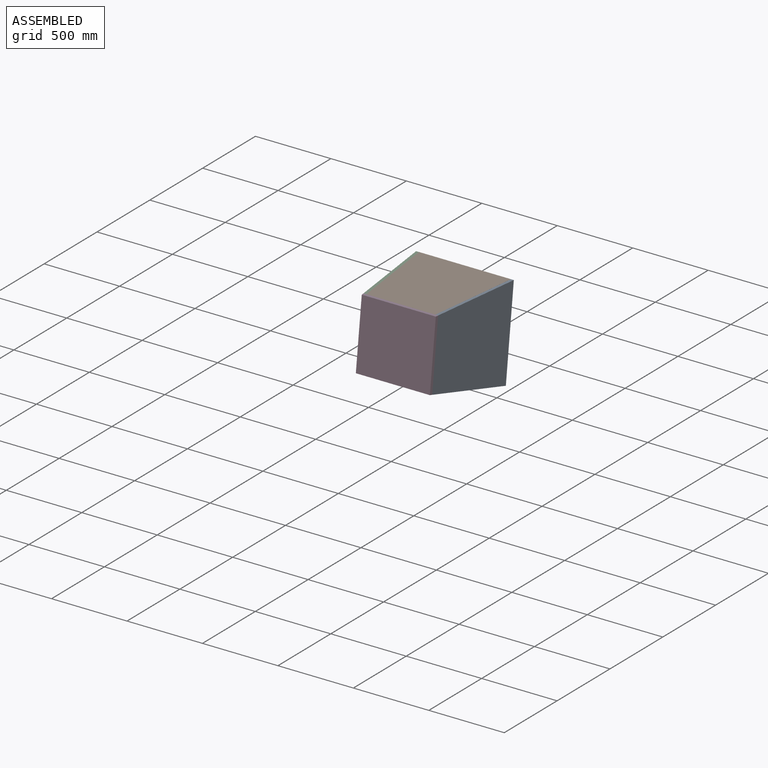
[diagram: assembled view]
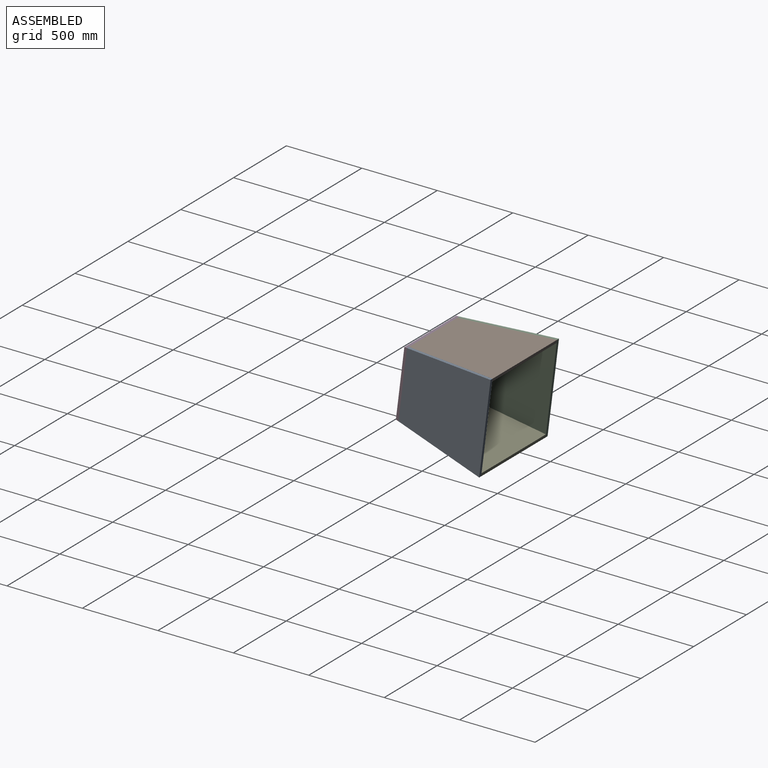
[diagram: assembled view, second angle]
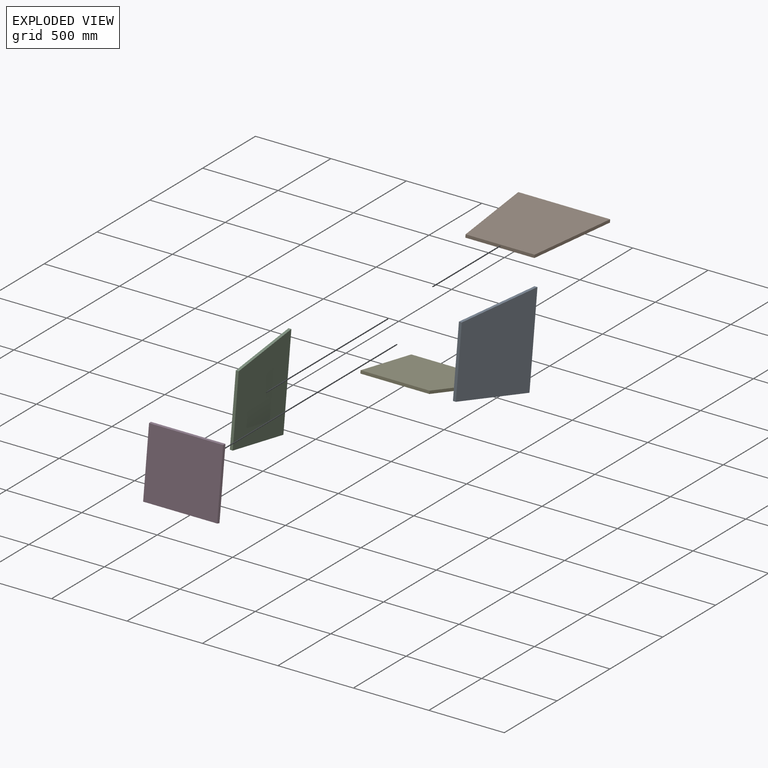
[diagram: exploded view]
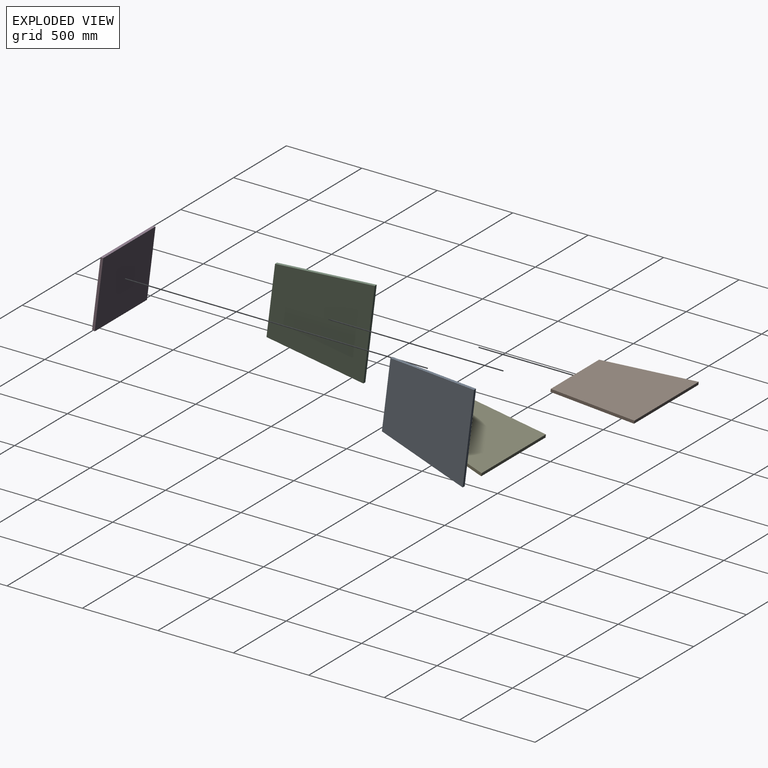
[diagram: exploded view, second angle]
ASSEMBLY  parts=5 mates=4
PART A: 6 faces, bbox 609x609.6x19.1 mm
  f0: plane 609.6x75.93mm, normal (-0.99,0.12,-0.02), area 11658.8mm2, adj f1,f3,f4,f5
  f1: plane 609x19.05mm, normal (0,-0.99,0.13), area 11693mm2, adj f0,f2,f4,f5
  f2: plane 609.6x75.93mm, normal (0.99,0.12,-0.02), area 11658.8mm2, adj f1,f3,f4,f5
  f3: plane 457.2x19.05mm, normal (0,0.99,-0.13), area 8778.2mm2, adj f0,f2,f4,f5
  f4: plane 609x607.19mm, normal (0,0,1), area 323694.3mm2, adj f0,f1,f2,f3
  f5: plane 608.93x607.19mm, normal (0,0,-1), area 323652.7mm2, adj f0,f1,f2,f3
PART B: same geometry as A
PART C: same geometry as A
PART D: 6 faces, bbox 495.3x457.2x19.1 mm
  f0: plane 495.3x19.05mm, normal (0,0.99,-0.12), area 9461.4mm2, adj f1,f3,f4,f5
  f1: plane 457.2x19.05mm, normal (-0.99,0,-0.12), area 8730.2mm2, adj f0,f2,f4,f5
  f2: plane 495.3x19.05mm, normal (0,-0.99,-0.12), area 9461.4mm2, adj f1,f3,f4,f5
  f3: plane 457.2x19.05mm, normal (0.99,0,-0.12), area 8730.2mm2, adj f0,f2,f4,f5
  f4: plane 495.3x457.2mm, normal (0,0,1), area 226451.2mm2, adj f0,f1,f2,f3
  f5: plane 490.62x452.52mm, normal (0,0,-1), area 222017.2mm2, adj f0,f1,f2,f3
PART E: same geometry as A
PLACE A rot(axis=(-0.71,0.09,0.7),179.9deg) t=(-941.48,678.84,-966.49)mm
PLACE B rot(axis=(-1,0,0),179.9deg) t=(-1208.12,714.14,-684.12)mm
PLACE C rot(axis=(-0.71,-0.09,-0.7),179.9deg) t=(-1511.73,683.43,-929.8)mm
PLACE D rot(axis=(0,-0.75,-0.66),180deg) t=(-1203.12,364.41,-936.67)mm fixed
PLACE E rot(axis=(0,-0.12,-0.99),180deg) t=(-1245.09,648.13,-1212.17)mm
MATE fastened D.f4 <-> A.f3  axis (0,0.99,-0.12) through (-978.95,386.77,-911.35)mm
MATE fastened B.f3 <-> D.f4  axis (0,-0.99,0.12) through (-1226.6,415.13,-684.52)mm
MATE fastened E.f3 <-> D.f4  axis (0,-0.99,0.12) through (-1226.6,358.42,-1138.18)mm
MATE fastened C.f3 <-> D.f4  axis (0,-0.99,0.12) through (-1474.25,386.77,-911.35)mm
